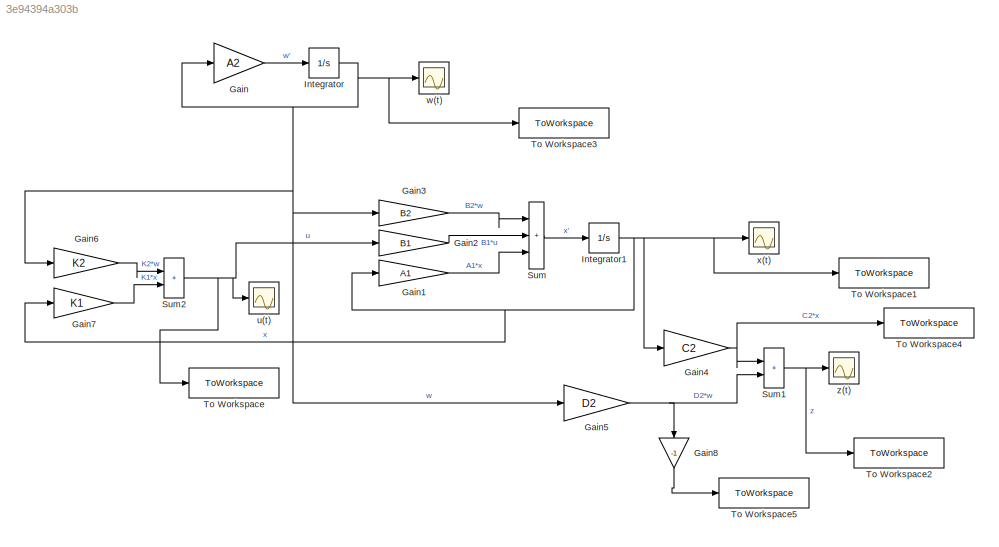
MODEL slx_3e94394a303b
KIND model
CONFIG AbsTol = auto
CONFIG EnableMultiTasking = off
CONFIG FixedStep = 0.0001
CONFIG MaxStep = auto
CONFIG MinStep = auto
CONFIG RelTol = 1e-3
CONFIG SampleTimeConstraint = Unconstrained
CONFIG SolverName = FixedStepAuto
CONFIG StartTime = 0.0
CONFIG StopTime = 5
BLOCK [Gain] Gain
  Gain = A2
  Multiplication = Matrix(K*u) (u vector)
BLOCK [Gain] Gain1
  Gain = A1
  Multiplication = Matrix(K*u) (u vector)
BLOCK [Gain] Gain2
  Gain = B1
  Multiplication = Matrix(K*u) (u vector)
BLOCK [Gain] Gain3
  Gain = B2
  Multiplication = Matrix(K*u) (u vector)
BLOCK [Gain] Gain4
  Gain = C2
  Multiplication = Matrix(K*u) (u vector)
BLOCK [Gain] Gain5
  Gain = D2
  Multiplication = Matrix(K*u) (u vector)
BLOCK [Gain] Gain6
  Gain = K2
  Multiplication = Matrix(K*u) (u vector)
BLOCK [Gain] Gain7
  Gain = K1
  Multiplication = Matrix(K*u) (u vector)
BLOCK [Gain] Gain8
  Gain = -1
  NameLocation = left
BLOCK [Integrator] Integrator
  InitialCondition = [1;1;1;1]
  Ports = [1, 1]
BLOCK [Integrator] Integrator1
  InitialCondition = [0;0;0]
  Ports = [1, 1]
BLOCK [Sum] Sum
  IconShape = rectangular
  Inputs = |+++
  Ports = [3, 1]
BLOCK [Sum] Sum1
  IconShape = rectangular
  Inputs = |++
  Ports = [2, 1]
BLOCK [Sum] Sum2
  IconShape = rectangular
  Inputs = |++
  Ports = [2, 1]
BLOCK [ToWorkspace] To Workspace
  FixptAsFi = on
  MaxDataPoints = inf
  Ports = [1]
  SampleTime = -1
  SaveFormat = Timeseries
  VariableName = u
BLOCK [ToWorkspace] To Workspace1
  FixptAsFi = on
  MaxDataPoints = inf
  Ports = [1]
  SampleTime = -1
  SaveFormat = Timeseries
  VariableName = x
BLOCK [ToWorkspace] To Workspace2
  FixptAsFi = on
  MaxDataPoints = inf
  Ports = [1]
  SampleTime = -1
  SaveFormat = Timeseries
  VariableName = z
BLOCK [ToWorkspace] To Workspace3
  FixptAsFi = on
  MaxDataPoints = inf
  Ports = [1]
  SampleTime = -1
  SaveFormat = Timeseries
  VariableName = w
BLOCK [ToWorkspace] To Workspace4
  FixptAsFi = on
  MaxDataPoints = inf
  Ports = [1]
  SampleTime = -1
  SaveFormat = Timeseries
  VariableName = C2x
BLOCK [ToWorkspace] To Workspace5
  FixptAsFi = on
  MaxDataPoints = inf
  Ports = [1]
  SampleTime = -1
  SaveFormat = Timeseries
  VariableName = D2w
BLOCK [Scope] u(t)
  Floating = off
  NumInputPorts = 1
  Ports = [1]
  ScopeSpecificationString = Simulink.scopes.TimeScopeBlockCfg('CurrentConfiguration', extmgr.ConfigurationSet(extmgr.Configuration('Core','General UI',true),extmgr.Configuration('Core','Source UI',true),extmgr.Configuration('Sources','WiredSimulink',true,'DataLoggingVariableName','ScopeData3'),extmgr.Configuration('Visuals','Time Domain',true,'SerializedDisplays',{struct('MinYLimReal','-328.85102','MaxYLimReal','144.07024','...<+1914ch>
BLOCK [Scope] w(t)
  Floating = off
  NumInputPorts = 1
  Ports = [1]
  ScopeSpecificationString = Simulink.scopes.TimeScopeBlockCfg('CurrentConfiguration', extmgr.ConfigurationSet(extmgr.Configuration('Core','General UI',true),extmgr.Configuration('Core','Source UI',true),extmgr.Configuration('Sources','WiredSimulink',true,'DataLoggingVariableName','ScopeData2'),extmgr.Configuration('Visuals','Time Domain',true,'SerializedDisplays',{struct('MinYLimReal','-251.41157','MaxYLimReal','170.11458','...<+1934ch>
BLOCK [Scope] x(t)
  Floating = off
  NumInputPorts = 1
  Ports = [1]
  ScopeSpecificationString = Simulink.scopes.TimeScopeBlockCfg('CurrentConfiguration', extmgr.ConfigurationSet(extmgr.Configuration('Core','General UI',true),extmgr.Configuration('Core','Source UI',true),extmgr.Configuration('Sources','WiredSimulink',true),extmgr.Configuration('Visuals','Time Domain',true,'SerializedDisplays',{struct('MinYLimReal','-612.229','MaxYLimReal','315.72988','YLabelReal','x','MinYLimMag',' 0.00000','...<+1881ch>
BLOCK [Scope] z(t)
  Floating = off
  NumInputPorts = 1
  Ports = [1]
  ScopeSpecificationString = Simulink.scopes.TimeScopeBlockCfg('CurrentConfiguration', extmgr.ConfigurationSet(extmgr.Configuration('Core','General UI',true),extmgr.Configuration('Core','Source UI',true),extmgr.Configuration('Sources','WiredSimulink',true,'DataLoggingVariableName','ScopeData1'),extmgr.Configuration('Visuals','Time Domain',true,'SerializedDisplays',{struct('MinYLimReal','-7.611','MaxYLimReal','1.81337','YLabel...<+1896ch>
LINE Gain1:1 -> Sum:3
LINE Gain2:1 -> Sum:2
LINE Gain3:1 -> Sum:1
NET Gain4:1 -> Sum1:1, To Workspace4:1
NET Gain5:1 -> Gain8:1, Sum1:2
LINE Gain6:1 -> Sum2:1
LINE Gain7:1 -> Sum2:2
LINE Gain8:1 -> To Workspace5:1
LINE Gain:1 -> Integrator:1
NET Integrator1:1 -> Gain1:1, Gain4:1, Gain7:1, To Workspace1:1, x(t):1
NET Integrator:1 -> Gain3:1, Gain5:1, Gain6:1, Gain:1, To Workspace3:1, w(t):1
NET Sum1:1 -> To Workspace2:1, z(t):1
NET Sum2:1 -> Gain2:1, To Workspace:1, u(t):1
LINE Sum:1 -> Integrator1:1
note: NET lines group one-source signal fan-out (src -> all destinations, sorted); 1:1 wires keep LINE
